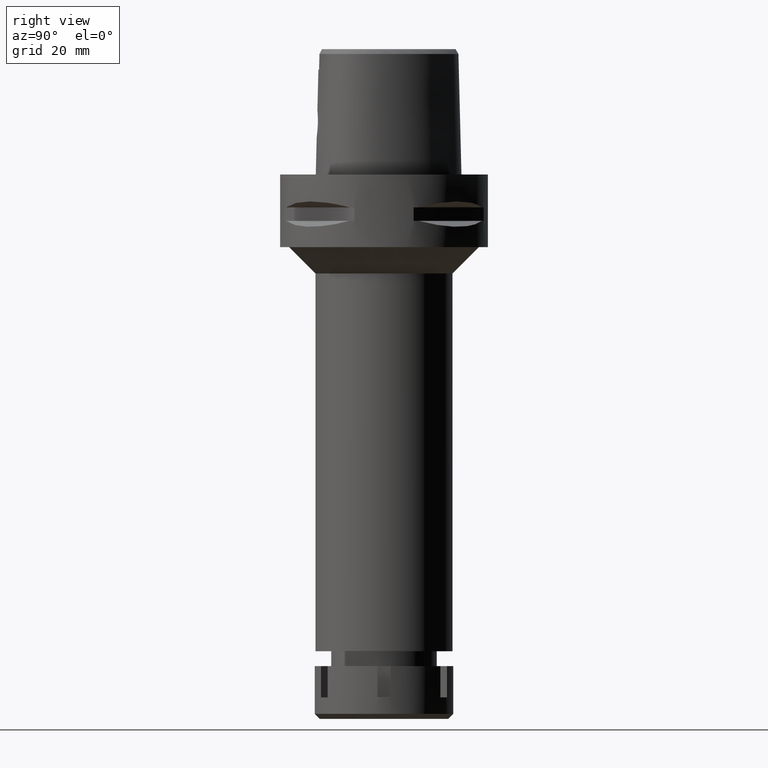
[diagram: clean part render]
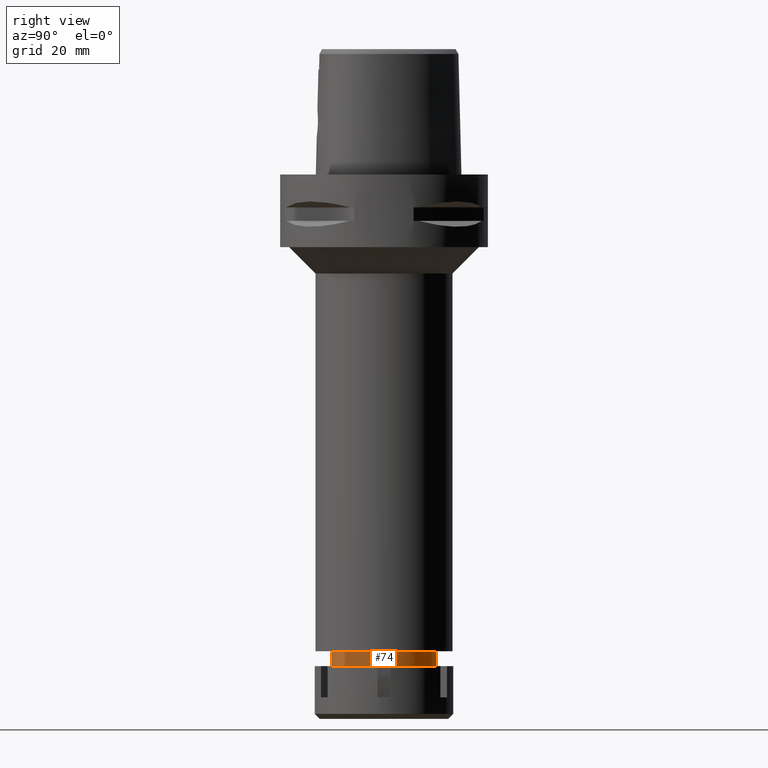
[diagram: same view with one face highlighted and labeled with its STEP entity id]
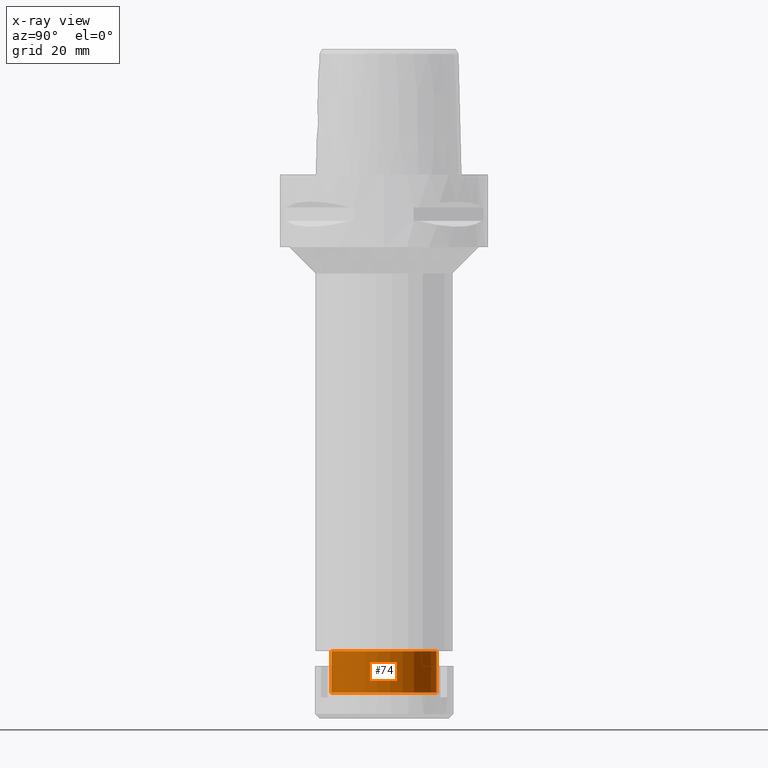
[diagram: x-ray of the same camera — body ghosted, the highlighted face saturated]
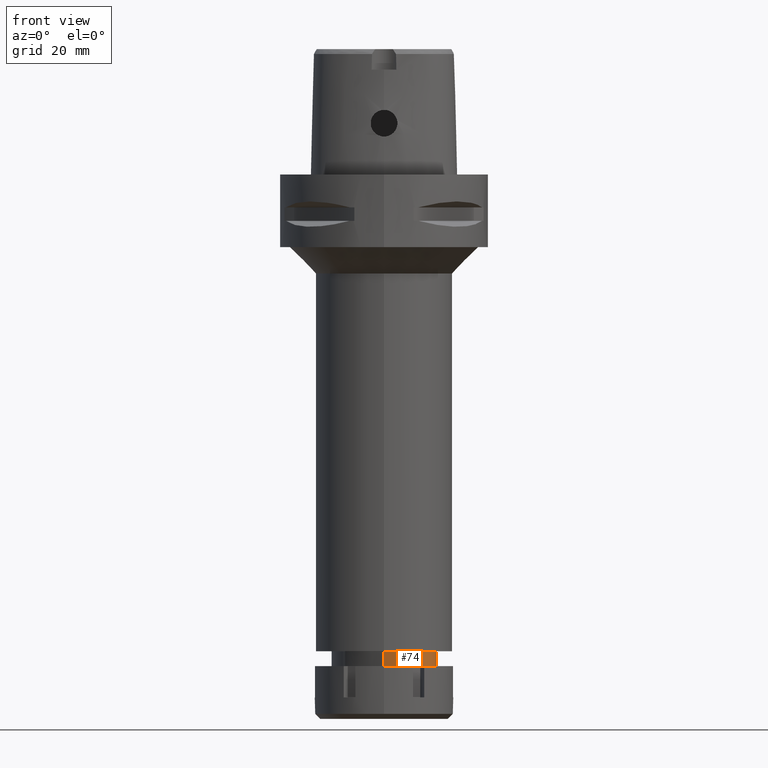
[diagram: same view with one face highlighted and labeled with its STEP entity id]
A machine part, right view. The second image highlights one B-rep face of the part: STEP entity #74.
The next image is the same camera in x-ray: the body ghosted, the highlighted face saturated — about 0% of this face is hidden behind the body in this view.
A second angle (front view) of the same face is appended — the face is thin or edge-on in the first view.
In plain terms, the highlighted cylindrical surface (partial cylindrical patch) has radius 16 mm, axis along (0, 0, -1).
Its self-contained STEP definition (entity closure, byte-faithful):
#74 = ADVANCED_FACE ( 'NONE', ( #5048 ), #1176, .T. ) ;
#96 = DIRECTION ( 'NONE',  ( 0.0000000000000000000, 0.0000000000000000000, -1.000000000000000000 ) ) ;
#110 = VERTEX_POINT ( 'NONE', #1236 ) ;
#206 = CARTESIAN_POINT ( 'NONE',  ( 0.0000000000000000000, 16.00000000000000000, -144.5000000000000000 ) ) ;
#238 = DIRECTION ( 'NONE',  ( 0.0000000000000000000, 1.000000000000000000, 0.0000000000000000000 ) ) ;
#336 = ORIENTED_EDGE ( 'NONE', *, *, #1993, .T. ) ;
#502 = VERTEX_POINT ( 'NONE', #2000 ) ;
#654 = EDGE_CURVE ( 'NONE', #1499, #502, #1368, .T. ) ;
#849 = VECTOR ( 'NONE', #2767, 1000.000000000000000 ) ;
#990 = CARTESIAN_POINT ( 'NONE',  ( 0.0000000000000000000, 16.00000000000000000, -144.5000000000000000 ) ) ;
#1176 = CYLINDRICAL_SURFACE ( 'NONE', #3320, 16.00000000000000000 ) ;
#1236 = CARTESIAN_POINT ( 'NONE',  ( 0.0000000000000000000, 16.00000000000000000, -157.0000000000000000 ) ) ;
#1368 = LINE ( 'NONE', #3119, #2457 ) ;
#1375 = CIRCLE ( 'NONE', #4284, 16.00000000000000000 ) ;
#1459 = CIRCLE ( 'NONE', #3828, 16.00000000000000000 ) ;
#1499 = VERTEX_POINT ( 'NONE', #5489 ) ;
#1535 = DIRECTION ( 'NONE',  ( 0.0000000000000000000, 0.0000000000000000000, -1.000000000000000000 ) ) ;
#1657 = DIRECTION ( 'NONE',  ( 0.0000000000000000000, 0.0000000000000000000, -1.000000000000000000 ) ) ;
#1690 = EDGE_LOOP ( 'NONE', ( #336, #3675, #2444, #4243 ) ) ;
#1860 = EDGE_CURVE ( 'NONE', #2254, #110, #2706, .T. ) ;
#1993 = EDGE_CURVE ( 'NONE', #2254, #1499, #1459, .T. ) ;
#2000 = CARTESIAN_POINT ( 'NONE',  ( 0.0000000000000000000, -16.00000000000000000, -157.0000000000000000 ) ) ;
#2063 = DIRECTION ( 'NONE',  ( 0.0000000000000000000, -1.000000000000000000, 0.0000000000000000000 ) ) ;
#2254 = VERTEX_POINT ( 'NONE', #990 ) ;
#2444 = ORIENTED_EDGE ( 'NONE', *, *, #3380, .T. ) ;
#2457 = VECTOR ( 'NONE', #96, 1000.000000000000000 ) ;
#2492 = CARTESIAN_POINT ( 'NONE',  ( 0.0000000000000000000, 1.320781572880000066E-14, -157.0000000000000000 ) ) ;
#2706 = LINE ( 'NONE', #206, #849 ) ;
#2767 = DIRECTION ( 'NONE',  ( 0.0000000000000000000, 0.0000000000000000000, -1.000000000000000000 ) ) ;
#3056 = DIRECTION ( 'NONE',  ( 0.0000000000000000000, -1.000000000000000000, 0.0000000000000000000 ) ) ;
#3119 = CARTESIAN_POINT ( 'NONE',  ( 0.0000000000000000000, -16.00000000000000000, -144.5000000000000000 ) ) ;
#3197 = CARTESIAN_POINT ( 'NONE',  ( 0.0000000000000000000, 1.320781572880000066E-14, -144.5000000000000000 ) ) ;
#3320 = AXIS2_PLACEMENT_3D ( 'NONE', #4628, #1657, #3056 ) ;
#3380 = EDGE_CURVE ( 'NONE', #502, #110, #1375, .T. ) ;
#3675 = ORIENTED_EDGE ( 'NONE', *, *, #654, .T. ) ;
#3828 = AXIS2_PLACEMENT_3D ( 'NONE', #3197, #1535, #238 ) ;
#4243 = ORIENTED_EDGE ( 'NONE', *, *, #1860, .F. ) ;
#4284 = AXIS2_PLACEMENT_3D ( 'NONE', #2492, #4698, #2063 ) ;
#4628 = CARTESIAN_POINT ( 'NONE',  ( 0.0000000000000000000, 1.320781572880000066E-14, 7.849999999999999645 ) ) ;
#4698 = DIRECTION ( 'NONE',  ( 0.0000000000000000000, 0.0000000000000000000, 1.000000000000000000 ) ) ;
#5048 = FACE_OUTER_BOUND ( 'NONE', #1690, .T. ) ;
#5489 = CARTESIAN_POINT ( 'NONE',  ( 0.0000000000000000000, -16.00000000000000000, -144.5000000000000000 ) ) ;